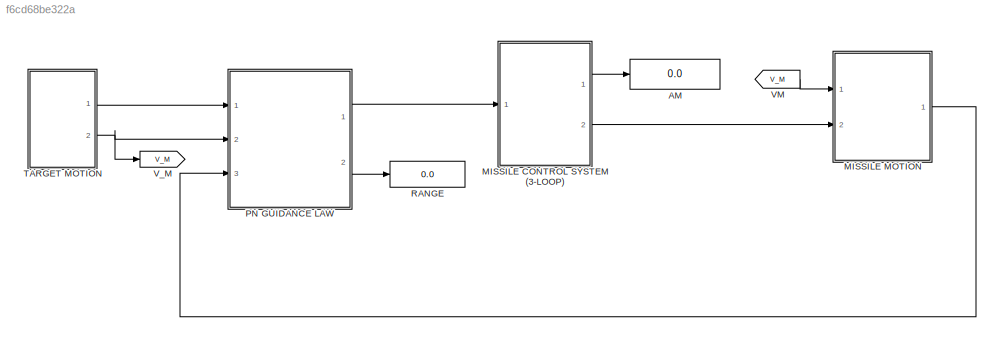
MODEL slx_f6cd68be322a
KIND model
CONFIG AbsTol = auto
CONFIG EnableMultiTasking = on
CONFIG FixedStep = 0.01
CONFIG MaxStep = auto
CONFIG MinStep = auto
CONFIG RelTol = 1e-3
CONFIG SampleTimeConstraint = Unconstrained
CONFIG SolverName = ode4
CONFIG StartTime = 0.0
CONFIG StopTime = 40
BLOCK [Display] AM
  Decimation = 1
  Ports = [1]
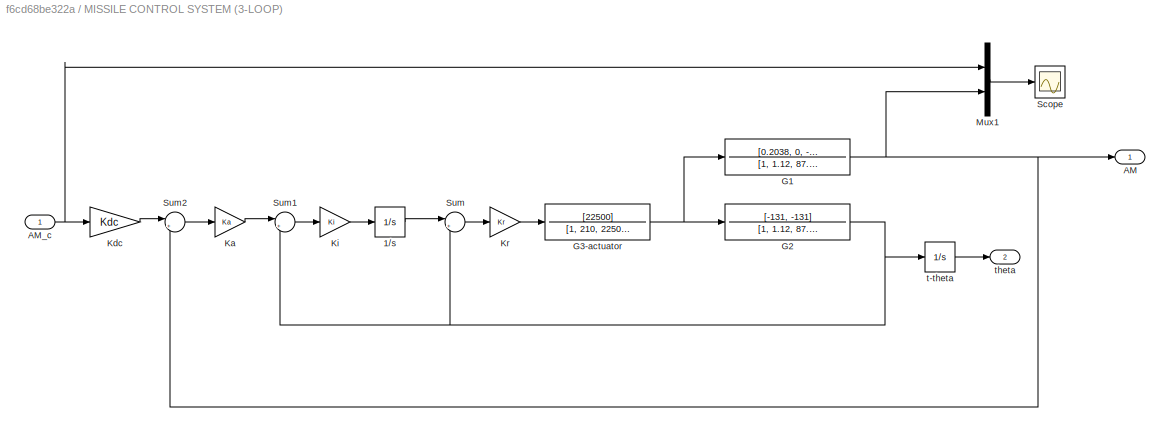
BLOCK [SubSystem] MISSILE CONTROL SYSTEM (3-LOOP)
  Ports = [1, 2]
  RequestExecContextInheritance = off
BLOCK [Integrator] MISSILE CONTROL SYSTEM (3-LOOP)/1//s
  Ports = [1, 1]
BLOCK [Outport] MISSILE CONTROL SYSTEM (3-LOOP)/AM
BLOCK [Inport] MISSILE CONTROL SYSTEM (3-LOOP)/AM_c
BLOCK [TransferFcn] MISSILE CONTROL SYSTEM (3-LOOP)/G1
  Denominator = [1, 1.12, 87.176]
  Numerator = [0.2038, 0, -239.76]
BLOCK [TransferFcn] MISSILE CONTROL SYSTEM (3-LOOP)/G2
  Denominator = [1, 1.12, 87.176]
  Numerator = [-131, -131]
BLOCK [TransferFcn] MISSILE CONTROL SYSTEM (3-LOOP)/G3-actuator
  Denominator = [1, 210, 22500]
  Numerator = [22500]
BLOCK [Gain] MISSILE CONTROL SYSTEM (3-LOOP)/Ka
  Gain = Ka
BLOCK [Gain] MISSILE CONTROL SYSTEM (3-LOOP)/Kdc
  Gain = Kdc
BLOCK [Gain] MISSILE CONTROL SYSTEM (3-LOOP)/Ki
  Gain = Ki
BLOCK [Gain] MISSILE CONTROL SYSTEM (3-LOOP)/Kr
  Gain = Kr
BLOCK [Mux] MISSILE CONTROL SYSTEM (3-LOOP)/Mux1
  DisplayOption = bar
  Inputs = 2
  Ports = [2, 1]
BLOCK [Scope] MISSILE CONTROL SYSTEM (3-LOOP)/Scope
  Floating = off
  NumInputPorts = 1
  Ports = [1]
  ScopeSpecificationString = C++SS(StrPVP('Location','[520, 267, 1774, 871]'),StrPVP('Open','off'),MxPVP('AxesTitles',54,'struct(''axes1'',''%<SignalLabel>'')'),MxPVP('ScopeGraphics',57,'struct(''FigureColor'',''[0.313725490196078 0.313725490196078 0.313725490196078]'',''AxesColor'',''[0.313725490196078 0.313725490196078 0.313725490196078]'',''AxesTickColor'',''[1 1 1]'',''LineColors'',''[1 1 0;1 0 1;0 1 1;1 0 0;0 1 0;0 0 1]'...<+351ch>
BLOCK [Sum] MISSILE CONTROL SYSTEM (3-LOOP)/Sum
  Inputs = |+-
  Ports = [2, 1]
BLOCK [Sum] MISSILE CONTROL SYSTEM (3-LOOP)/Sum1
  Inputs = |+-
  Ports = [2, 1]
BLOCK [Sum] MISSILE CONTROL SYSTEM (3-LOOP)/Sum2
  Inputs = |+-
  Ports = [2, 1]
BLOCK [Integrator] MISSILE CONTROL SYSTEM (3-LOOP)/t-theta
  InitialCondition = l_M0
  Ports = [1, 1]
BLOCK [Outport] MISSILE CONTROL SYSTEM (3-LOOP)/theta
  Port = 2
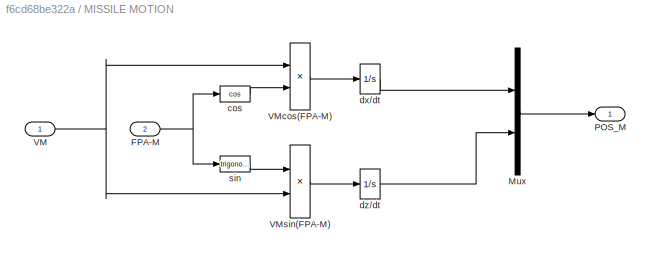
BLOCK [SubSystem] MISSILE MOTION
  Ports = [2, 1]
  RequestExecContextInheritance = off
BLOCK [Inport] MISSILE MOTION/FPA-M
  Port = 2
BLOCK [Mux] MISSILE MOTION/Mux
  DisplayOption = bar
  Inputs = 2
  Ports = [2, 1]
BLOCK [Outport] MISSILE MOTION/POS_M
BLOCK [Inport] MISSILE MOTION/VM
BLOCK [Product] MISSILE MOTION/VMcos(FPA-M)
  Ports = [2, 1]
BLOCK [Product] MISSILE MOTION/VMsin(FPA-M)
  Ports = [2, 1]
BLOCK [Trigonometry] MISSILE MOTION/cos
  Operator = cos
  Ports = [1, 1]
BLOCK [Integrator] MISSILE MOTION/dx//dt
  InitialCondition = X_M0
  Ports = [1, 1]
BLOCK [Integrator] MISSILE MOTION/dz//dt
  InitialCondition = Z_M0
  Ports = [1, 1]
BLOCK [Trigonometry] MISSILE MOTION/sin
  Ports = [1, 1]
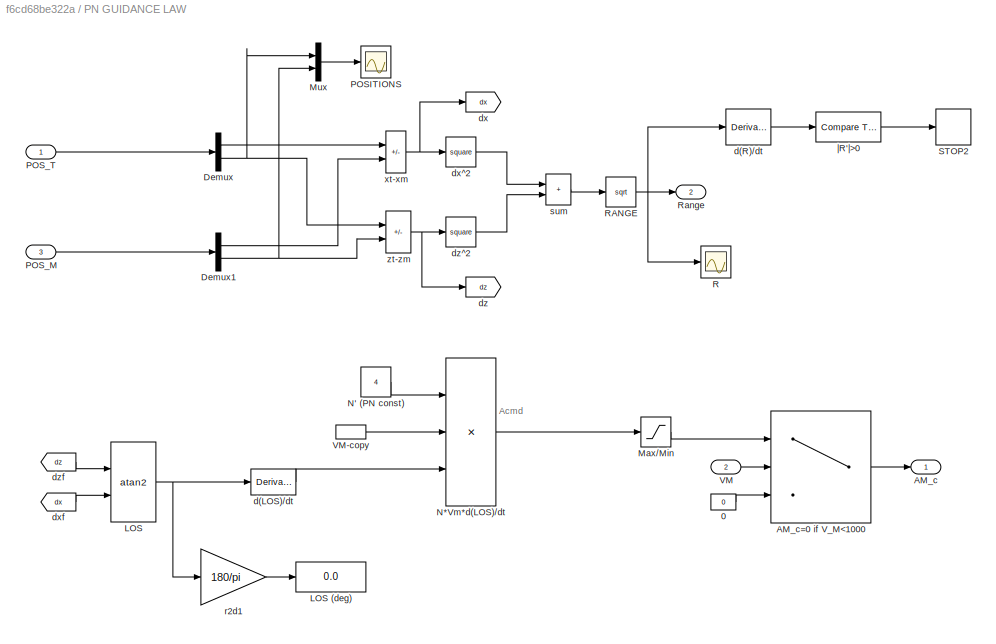
BLOCK [SubSystem] PN GUIDANCE LAW
  Ports = [3, 2]
  RequestExecContextInheritance = off
BLOCK [Constant] PN GUIDANCE LAW/0
  Value = 0
BLOCK [Outport] PN GUIDANCE LAW/AM_c
BLOCK [Switch] PN GUIDANCE LAW/AM_c=0 if V_M<1000
  Criteria = u2 > Threshold
  InputSameDT = off
  SaturateOnIntegerOverflow = off
  Threshold = 950
BLOCK [Demux] PN GUIDANCE LAW/Demux
  Outputs = 2
  Ports = [1, 2]
BLOCK [Demux] PN GUIDANCE LAW/Demux1
  Outputs = 2
  Ports = [1, 2]
BLOCK [Trigonometry] PN GUIDANCE LAW/LOS
  Operator = atan2
  OutputSignalType = real
  Ports = [2, 1]
BLOCK [Display] PN GUIDANCE LAW/LOS (deg)
  Decimation = 1
  Format = bank
  Ports = [1]
BLOCK [Saturate] PN GUIDANCE LAW/Max//Min
  LowerLimit = -0.10
  UpperLimit = 0
BLOCK [Mux] PN GUIDANCE LAW/Mux
  DisplayOption = bar
  Inputs = 2
  Ports = [2, 1]
BLOCK [Constant] PN GUIDANCE LAW/N' (PN const)
  Value = 4
BLOCK [Product] PN GUIDANCE LAW/N*Vm*d(LOS)//dt
  Inputs = 3
  Ports = [3, 1]
BLOCK [Scope] PN GUIDANCE LAW/POSITIONS
  Floating = off
  NumInputPorts = 1
  Ports = [1]
  ScopeSpecificationString = C++SS(StrPVP('Location','[520, 267, 1198, 871]'),StrPVP('Open','off'),MxPVP('AxesTitles',54,'struct(''axes1'',''%<SignalLabel>'')'),MxPVP('ScopeGraphics',57,'struct(''FigureColor'',''[0.313725490196078 0.313725490196078 0.313725490196078]'',''AxesColor'',''[0.313725490196078 0.313725490196078 0.313725490196078]'',''AxesTickColor'',''[1 1 1]'',''LineColors'',''[1 1 0;1 0 1;0 1 1;1 0 0;0 1 0;0 0 1]'...<+350ch>
BLOCK [Inport] PN GUIDANCE LAW/POS_M
  Port = 3
BLOCK [Inport] PN GUIDANCE LAW/POS_T
BLOCK [Scope] PN GUIDANCE LAW/R
  Floating = off
  NumInputPorts = 1
  Ports = [1]
  ScopeSpecificationString = C++SS(StrPVP('Location','[300, 240, 1643, 844]'),StrPVP('Open','off'),MxPVP('AxesTitles',54,'struct(''axes1'',''%<SignalLabel>'')'),MxPVP('ScopeGraphics',57,'struct(''FigureColor'',''[0.501960784313725 0.501960784313725 0.501960784313725]'',''AxesColor'',''[0 0 0]'',''AxesTickColor'',''[1 1 1]'',''LineColors'',''[1 1 0;1 0 1;0 1 1;1 0 0;0 1 0;0 0 1]'',''LineStyles'',''-|-|-|-|-|-'',''LineWidths'',...<+305ch>
BLOCK [Sqrt] PN GUIDANCE LAW/RANGE
  OutputSignalType = real
BLOCK [Outport] PN GUIDANCE LAW/Range
  Port = 2
BLOCK [Stop] PN GUIDANCE LAW/STOP2
BLOCK [Inport] PN GUIDANCE LAW/VM
  Port = 2
BLOCK [InportShadow] PN GUIDANCE LAW/VM-copy
  Port = 2
BLOCK [Derivative] PN GUIDANCE LAW/d(LOS)//dt
BLOCK [Derivative] PN GUIDANCE LAW/d(R)//dt
BLOCK [Goto] PN GUIDANCE LAW/dx
  GotoTag = dx
BLOCK [Math] PN GUIDANCE LAW/dx^2
  Operator = square
  OutputSignalType = real
  Ports = [1, 1]
  SignedPower = on
BLOCK [From] PN GUIDANCE LAW/dxf
  GotoTag = dx
BLOCK [Goto] PN GUIDANCE LAW/dz
  GotoTag = dz
BLOCK [Math] PN GUIDANCE LAW/dz^2
  Operator = square
  OutputSignalType = real
  Ports = [1, 1]
  SignedPower = on
BLOCK [From] PN GUIDANCE LAW/dzf
  GotoTag = dz
BLOCK [Gain] PN GUIDANCE LAW/r2d1
  Gain = 180/pi
BLOCK [Sum] PN GUIDANCE LAW/sum
  IconShape = rectangular
  Ports = [2, 1]
BLOCK [Sum] PN GUIDANCE LAW/xt-xm
  IconShape = rectangular
  Inputs = +-
  Ports = [2, 1]
BLOCK [Sum] PN GUIDANCE LAW/zt-zm
  IconShape = rectangular
  Inputs = +-
  Ports = [2, 1]
BLOCK [Reference] PN GUIDANCE LAW/|R'|>0  REF=simulink/Logic and Bit
Operations/Compare
To Constant
  Ports = [1, 1]
  SourceBlock = simulink/Logic and Bit\nOperations/Compare\nTo Constant
  SourceProductBaseCode = SL
  SourceType = Compare To Constant
BLOCK [Display] RANGE
  Decimation = 1
  Ports = [1]
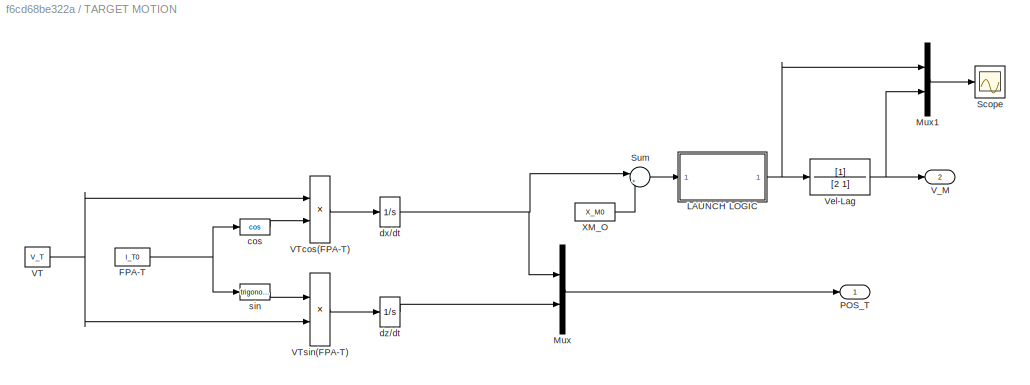
BLOCK [SubSystem] TARGET MOTION
  Ports = [0, 2]
  RequestExecContextInheritance = off
BLOCK [Constant] TARGET MOTION/FPA-T
  Value = l_T0
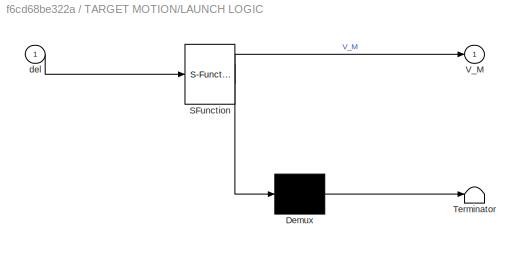
BLOCK [SubSystem] TARGET MOTION/LAUNCH LOGIC
  ErrorFcn = Stateflow.Translate.translate
  PermitHierarchicalResolution = ExplicitOnly
  Ports = [1, 1]
  RequestExecContextInheritance = off
  SFBlockType = MATLAB Function
  TreatAsAtomicUnit = on
BLOCK [Demux] TARGET MOTION/LAUNCH LOGIC/ Demux 
  Outputs = 1
  Ports = [1, 1]
BLOCK [S-Function] TARGET MOTION/LAUNCH LOGIC/ SFunction 
  EnableBusSupport = on
  FunctionName = sf_sfun
  PortCounts = [1 2]
  Ports = [1, 2]
  SFcnIsStateOwnerBlock = off
  SFunctionDeploymentMode = off
  Tag = Stateflow S-Function 2
BLOCK [Terminator] TARGET MOTION/LAUNCH LOGIC/ Terminator 
BLOCK [Outport] TARGET MOTION/LAUNCH LOGIC/V_M
BLOCK [Inport] TARGET MOTION/LAUNCH LOGIC/del
BLOCK [Mux] TARGET MOTION/Mux
  DisplayOption = bar
  Inputs = 2
  Ports = [2, 1]
BLOCK [Mux] TARGET MOTION/Mux1
  DisplayOption = bar
  Inputs = 2
  Ports = [2, 1]
BLOCK [Outport] TARGET MOTION/POS_T
BLOCK [Scope] TARGET MOTION/Scope
  Floating = off
  NumInputPorts = 1
  Ports = [1]
  ScopeSpecificationString = C++SS(StrPVP('Location','[520, 267, 1198, 871]'),StrPVP('Open','off'),MxPVP('AxesTitles',54,'struct(''axes1'',''%<SignalLabel>'')'),MxPVP('ScopeGraphics',57,'struct(''FigureColor'',''[0.313725490196078 0.313725490196078 0.313725490196078]'',''AxesColor'',''[0.313725490196078 0.313725490196078 0.313725490196078]'',''AxesTickColor'',''[1 1 1]'',''LineColors'',''[1 1 0;1 0 1;0 1 1;1 0 0;0 1 0;0 0 1]'...<+319ch>
BLOCK [Sum] TARGET MOTION/Sum
  Inputs = |+-
  Ports = [2, 1]
BLOCK [Constant] TARGET MOTION/VT
  Value = V_T
BLOCK [Product] TARGET MOTION/VTcos(FPA-T)
  Ports = [2, 1]
BLOCK [Product] TARGET MOTION/VTsin(FPA-T)
  Ports = [2, 1]
BLOCK [Outport] TARGET MOTION/V_M
  Port = 2
BLOCK [TransferFcn] TARGET MOTION/Vel-Lag
  Denominator = [2 1]
BLOCK [Constant] TARGET MOTION/XM_O
  Value = X_M0
BLOCK [Trigonometry] TARGET MOTION/cos
  Operator = cos
  Ports = [1, 1]
BLOCK [Integrator] TARGET MOTION/dx//dt
  InitialCondition = X_T0
  Ports = [1, 1]
BLOCK [Integrator] TARGET MOTION/dz//dt
  InitialCondition = Z_T0
  Ports = [1, 1]
BLOCK [Trigonometry] TARGET MOTION/sin
  Ports = [1, 1]
BLOCK [From] VM
  GotoTag = V_M
BLOCK [Goto] V_M
  GotoTag = V_M
ANNOTATION PN GUIDANCE LAW: Acmd
LINE MISSILE CONTROL SYSTEM (3-LOOP)/1//s:1 -> MISSILE CONTROL SYSTEM (3-LOOP)/Sum:1
NET MISSILE CONTROL SYSTEM (3-LOOP)/AM_c:1 -> MISSILE CONTROL SYSTEM (3-LOOP)/Kdc:1, MISSILE CONTROL SYSTEM (3-LOOP)/Mux1:1
NET MISSILE CONTROL SYSTEM (3-LOOP)/G1:1 -> MISSILE CONTROL SYSTEM (3-LOOP)/AM:1, MISSILE CONTROL SYSTEM (3-LOOP)/Mux1:2, MISSILE CONTROL SYSTEM (3-LOOP)/Sum2:2
NET MISSILE CONTROL SYSTEM (3-LOOP)/G2:1 -> MISSILE CONTROL SYSTEM (3-LOOP)/Sum1:2, MISSILE CONTROL SYSTEM (3-LOOP)/Sum:2, MISSILE CONTROL SYSTEM (3-LOOP)/t-theta:1
NET MISSILE CONTROL SYSTEM (3-LOOP)/G3-actuator:1 -> MISSILE CONTROL SYSTEM (3-LOOP)/G1:1, MISSILE CONTROL SYSTEM (3-LOOP)/G2:1
LINE MISSILE CONTROL SYSTEM (3-LOOP)/Ka:1 -> MISSILE CONTROL SYSTEM (3-LOOP)/Sum1:1
LINE MISSILE CONTROL SYSTEM (3-LOOP)/Kdc:1 -> MISSILE CONTROL SYSTEM (3-LOOP)/Sum2:1
LINE MISSILE CONTROL SYSTEM (3-LOOP)/Ki:1 -> MISSILE CONTROL SYSTEM (3-LOOP)/1//s:1
LINE MISSILE CONTROL SYSTEM (3-LOOP)/Kr:1 -> MISSILE CONTROL SYSTEM (3-LOOP)/G3-actuator:1
LINE MISSILE CONTROL SYSTEM (3-LOOP)/Mux1:1 -> MISSILE CONTROL SYSTEM (3-LOOP)/Scope:1
LINE MISSILE CONTROL SYSTEM (3-LOOP)/Sum1:1 -> MISSILE CONTROL SYSTEM (3-LOOP)/Ki:1
LINE MISSILE CONTROL SYSTEM (3-LOOP)/Sum2:1 -> MISSILE CONTROL SYSTEM (3-LOOP)/Ka:1
LINE MISSILE CONTROL SYSTEM (3-LOOP)/Sum:1 -> MISSILE CONTROL SYSTEM (3-LOOP)/Kr:1
LINE MISSILE CONTROL SYSTEM (3-LOOP)/t-theta:1 -> MISSILE CONTROL SYSTEM (3-LOOP)/theta:1
LINE MISSILE CONTROL SYSTEM (3-LOOP):1 -> AM:1
LINE MISSILE CONTROL SYSTEM (3-LOOP):2 -> MISSILE MOTION:2
NET MISSILE MOTION/FPA-M:1 -> MISSILE MOTION/cos:1, MISSILE MOTION/sin:1
LINE MISSILE MOTION/Mux:1 -> MISSILE MOTION/POS_M:1
NET MISSILE MOTION/VM:1 -> MISSILE MOTION/VMcos(FPA-M):1, MISSILE MOTION/VMsin(FPA-M):2
LINE MISSILE MOTION/VMcos(FPA-M):1 -> MISSILE MOTION/dx//dt:1
LINE MISSILE MOTION/VMsin(FPA-M):1 -> MISSILE MOTION/dz//dt:1
LINE MISSILE MOTION/cos:1 -> MISSILE MOTION/VMcos(FPA-M):2
LINE MISSILE MOTION/dx//dt:1 -> MISSILE MOTION/Mux:1
LINE MISSILE MOTION/dz//dt:1 -> MISSILE MOTION/Mux:2
LINE MISSILE MOTION/sin:1 -> MISSILE MOTION/VMsin(FPA-M):1
LINE MISSILE MOTION:1 -> PN GUIDANCE LAW:3
LINE PN GUIDANCE LAW/0:1 -> PN GUIDANCE LAW/AM_c=0 if V_M<1000:3
LINE PN GUIDANCE LAW/AM_c=0 if V_M<1000:1 -> PN GUIDANCE LAW/AM_c:1
LINE PN GUIDANCE LAW/Demux1:1 -> PN GUIDANCE LAW/xt-xm:2
NET PN GUIDANCE LAW/Demux1:2 -> PN GUIDANCE LAW/Mux:2, PN GUIDANCE LAW/zt-zm:2
LINE PN GUIDANCE LAW/Demux:1 -> PN GUIDANCE LAW/xt-xm:1
NET PN GUIDANCE LAW/Demux:2 -> PN GUIDANCE LAW/Mux:1, PN GUIDANCE LAW/zt-zm:1
NET PN GUIDANCE LAW/LOS:1 -> PN GUIDANCE LAW/d(LOS)//dt:1, PN GUIDANCE LAW/r2d1:1
LINE PN GUIDANCE LAW/Max//Min:1 -> PN GUIDANCE LAW/AM_c=0 if V_M<1000:1
LINE PN GUIDANCE LAW/Mux:1 -> PN GUIDANCE LAW/POSITIONS:1
LINE PN GUIDANCE LAW/N' (PN const):1 -> PN GUIDANCE LAW/N*Vm*d(LOS)//dt:1
LINE PN GUIDANCE LAW/N*Vm*d(LOS)//dt:1 -> PN GUIDANCE LAW/Max//Min:1
LINE PN GUIDANCE LAW/POS_M:1 -> PN GUIDANCE LAW/Demux1:1
LINE PN GUIDANCE LAW/POS_T:1 -> PN GUIDANCE LAW/Demux:1
NET PN GUIDANCE LAW/RANGE:1 -> PN GUIDANCE LAW/R:1, PN GUIDANCE LAW/Range:1, PN GUIDANCE LAW/d(R)//dt:1
LINE PN GUIDANCE LAW/VM-copy:1 -> PN GUIDANCE LAW/N*Vm*d(LOS)//dt:2
LINE PN GUIDANCE LAW/VM:1 -> PN GUIDANCE LAW/AM_c=0 if V_M<1000:2
LINE PN GUIDANCE LAW/d(LOS)//dt:1 -> PN GUIDANCE LAW/N*Vm*d(LOS)//dt:3
LINE PN GUIDANCE LAW/d(R)//dt:1 -> PN GUIDANCE LAW/|R'|>0:1
LINE PN GUIDANCE LAW/dx^2:1 -> PN GUIDANCE LAW/sum:1
LINE PN GUIDANCE LAW/dxf:1 -> PN GUIDANCE LAW/LOS:2
LINE PN GUIDANCE LAW/dz^2:1 -> PN GUIDANCE LAW/sum:2
LINE PN GUIDANCE LAW/dzf:1 -> PN GUIDANCE LAW/LOS:1
LINE PN GUIDANCE LAW/r2d1:1 -> PN GUIDANCE LAW/LOS (deg):1
LINE PN GUIDANCE LAW/sum:1 -> PN GUIDANCE LAW/RANGE:1
NET PN GUIDANCE LAW/xt-xm:1 -> PN GUIDANCE LAW/dx:1, PN GUIDANCE LAW/dx^2:1
NET PN GUIDANCE LAW/zt-zm:1 -> PN GUIDANCE LAW/dz:1, PN GUIDANCE LAW/dz^2:1
LINE PN GUIDANCE LAW/|R'|>0:1 -> PN GUIDANCE LAW/STOP2:1
LINE PN GUIDANCE LAW:1 -> MISSILE CONTROL SYSTEM (3-LOOP):1
LINE PN GUIDANCE LAW:2 -> RANGE:1
NET TARGET MOTION/FPA-T:1 -> TARGET MOTION/cos:1, TARGET MOTION/sin:1
NET TARGET MOTION/LAUNCH LOGIC:1 -> TARGET MOTION/Mux1:1, TARGET MOTION/Vel-Lag:1
LINE TARGET MOTION/Mux1:1 -> TARGET MOTION/Scope:1
LINE TARGET MOTION/Mux:1 -> TARGET MOTION/POS_T:1
LINE TARGET MOTION/Sum:1 -> TARGET MOTION/LAUNCH LOGIC:1
NET TARGET MOTION/VT:1 -> TARGET MOTION/VTcos(FPA-T):1, TARGET MOTION/VTsin(FPA-T):2
LINE TARGET MOTION/VTcos(FPA-T):1 -> TARGET MOTION/dx//dt:1
LINE TARGET MOTION/VTsin(FPA-T):1 -> TARGET MOTION/dz//dt:1
NET TARGET MOTION/Vel-Lag:1 -> TARGET MOTION/Mux1:2, TARGET MOTION/V_M:1
LINE TARGET MOTION/XM_O:1 -> TARGET MOTION/Sum:2
LINE TARGET MOTION/cos:1 -> TARGET MOTION/VTcos(FPA-T):2
NET TARGET MOTION/dx//dt:1 -> TARGET MOTION/Mux:1, TARGET MOTION/Sum:1
LINE TARGET MOTION/dz//dt:1 -> TARGET MOTION/Mux:2
LINE TARGET MOTION/sin:1 -> TARGET MOTION/VTsin(FPA-T):1
LINE TARGET MOTION:1 -> PN GUIDANCE LAW:1
NET TARGET MOTION:2 -> PN GUIDANCE LAW:2, V_M:1
LINE VM:1 -> MISSILE MOTION:1
note: NET lines group one-source signal fan-out (src -> all destinations, sorted); 1:1 wires keep LINE
CHART TARGET
MOTION/LAUNCH LOGIC states=1 transitions=1
  STATE_LABEL 'eML_blk_kernel()'
  STATE_LABEL 'SCRIPT:\nfunction V_M = fcn(del)\n%#codegen\n\nf = 0;\nVel = 0;\n\nif isempty(f)\n    f = 0;\nend\nif isempty(Vel)\n    Vel = 0;\nend\n\nif f == 0 && del > -200\n    f = 1;\n    Vel = 1021;\nend\n\n\nV_M = Vel;'
CHART  states=0 transitions=0
